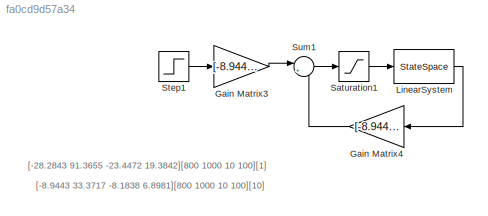
MODEL slx_fa0cd9d57a34
KIND model
CONFIG AbsTol = auto
CONFIG FixedStep = 0.01
CONFIG MaxStep = auto
CONFIG MinStep = auto
CONFIG RelTol = 1e-3
CONFIG SampleTimeConstraint = Unconstrained
CONFIG Solver = ode5
CONFIG SolverMode = Auto
CONFIG SolverName = ode5
CONFIG StartTime = 0.0
CONFIG StopTime = 20
WORKSPACE source: MAT-file member
WORKSPACE A = [0 0 0 0 0 0 0.252647937474 15.0472557056 1 0 -2.0942342122 -3.13162876156 ... (16 elements, 4x4)]
BLOCK [Gain] Gain Matrix3
  Gain = [-8.9443]
  OutDataTypeStr = Inherit: Inherit via internal rule
  ParamDataTypeStr = Inherit: Inherit via internal rule
  SaturateOnIntegerOverflow = off
BLOCK [Gain] Gain Matrix4
  Gain = [-8.9443   33.3717   -8.1838    6.8981]
  Multiplication = Matrix(K*u) (u vector)
  OutDataTypeStr = Inherit: Inherit via internal rule
  ParamDataTypeStr = Inherit: Inherit via internal rule
  SaturateOnIntegerOverflow = off
BLOCK [StateSpace] LinearSystem
  A = A
  B = B
  C = C
  D = D
  Ports = [1, 1]
  X0 = [0; 0; 0; 0]
BLOCK [Saturate] Saturation1
  InputPortMap = u0
  LowerLimit = -2.5
  Ports = [1, 1]
  UpperLimit = 2.5
BLOCK [Step] Step1
  After = 0.2
  Before = -0.2
  SampleTime = 0
  Time = 10
BLOCK [Sum] Sum1
  IconShape = round
  InputSameDT = off
  Inputs = |+-
  OutDataTypeStr = Inherit: Inherit via internal rule
  Ports = [2, 1]
  SaturateOnIntegerOverflow = off
ANNOTATION (root): [-28.2843 91.3655 -23.4472 19.3842][800 1000 10 100][1]
ANNOTATION (root): [-8.9443 33.3717 -8.1838 6.8981][800 1000 10 100][10]
LINE Gain Matrix3:1 -> Sum1:1
LINE Gain Matrix4:1 -> Sum1:2
LINE LinearSystem:1 -> Gain Matrix4:1
LINE Saturation1:1 -> LinearSystem:1
LINE Step1:1 -> Gain Matrix3:1
LINE Sum1:1 -> Saturation1:1
